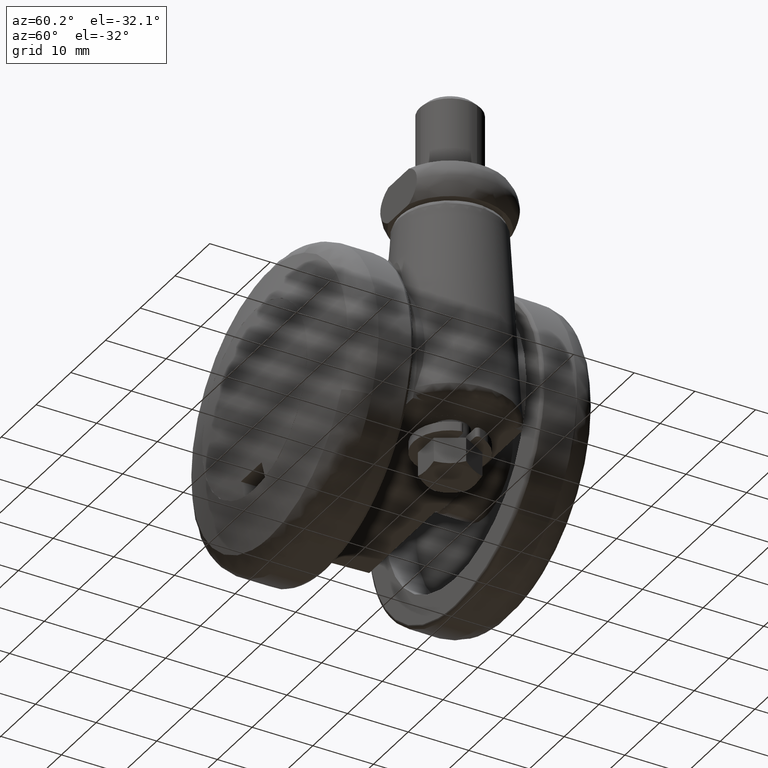
[diagram: clean part render]
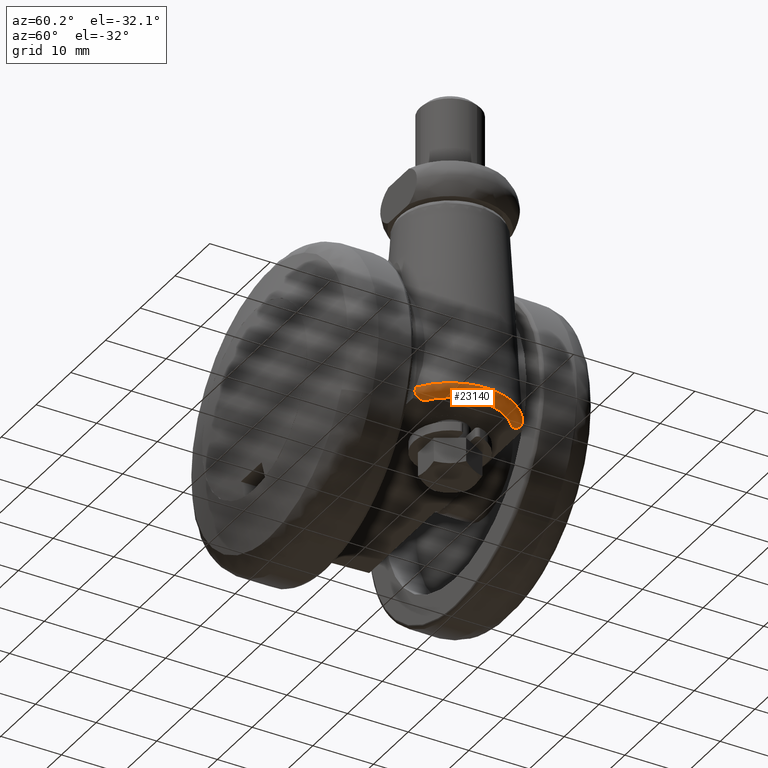
[diagram: same view with one face highlighted and labeled with its STEP entity id]
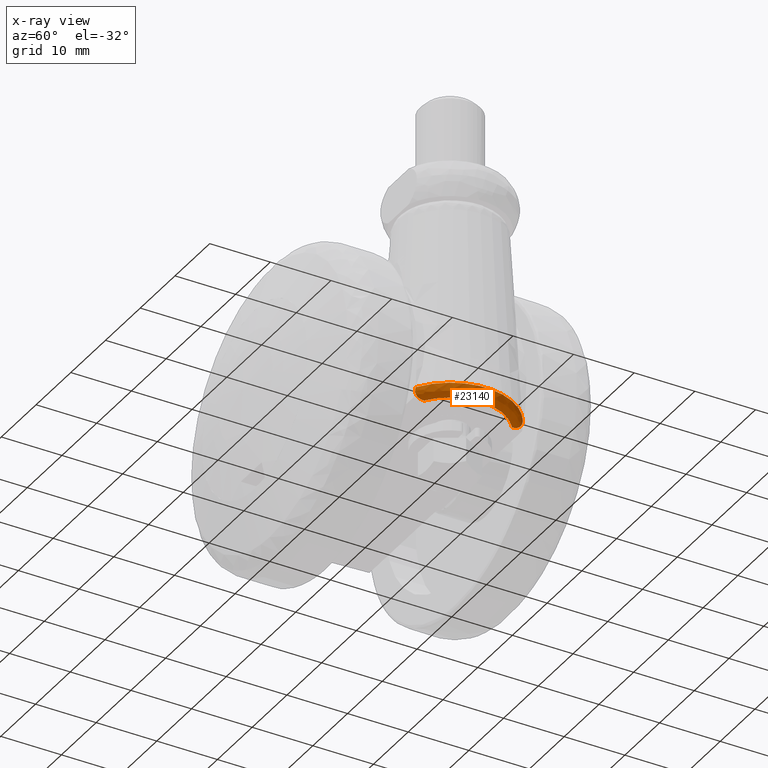
[diagram: x-ray of the same camera — body ghosted, the highlighted face saturated]
A machine part, auxiliary view. The second image highlights one B-rep face of the part: STEP entity #23140.
The next image is the same camera in x-ray: the body ghosted, the highlighted face saturated — about 0% of this face is hidden behind the body in this view.
In plain terms, the highlighted face is a freeform B-spline surface patch.
Its self-contained STEP definition (entity closure, byte-faithful):
#23009=CARTESIAN_POINT('',(20.774800439144332,-7.951221303421848,-7.496149489147332));
#23010=CARTESIAN_POINT('',(25.801763378514199,-5.564697122170681,-7.496149489147330));
#23011=CARTESIAN_POINT('',(25.801763378514202,5.389348E-016,-7.496149489147332));
#23012=CARTESIAN_POINT('',(25.801763378514199,5.564697892870028,-7.496149489147332));
#23013=CARTESIAN_POINT('',(20.774799444331343,7.951221775703997,-7.496149489147331));
#23014=CARTESIAN_POINT('',(21.561030532042583,-9.607332550844767,-7.627760213959456));
#23015=CARTESIAN_POINT('',(27.635028831965901,-6.723733846323080,-7.627760213959455));
#23016=CARTESIAN_POINT('',(27.635028831965897,6.511862E-016,-7.627760213959454));
#23017=CARTESIAN_POINT('',(27.635028831965908,6.723734777546675,-7.627760213959457));
#23018=CARTESIAN_POINT('',(21.561029330026077,9.607333121495673,-7.627760213959456));
#23019=CARTESIAN_POINT('',(21.458726826246998,-9.391840522046223,-5.805322082496598));
#23020=CARTESIAN_POINT('',(27.396485622682512,-6.572920804307775,-5.805322082496598));
#23021=CARTESIAN_POINT('',(27.396485622682508,6.365801E-016,-5.805322082496598));
#23022=CARTESIAN_POINT('',(27.396485622682508,6.572921714644067,-5.805322082496598));
#23023=CARTESIAN_POINT('',(21.458725651191667,9.391841079897462,-5.805322082496597));
#23031=(BOUNDED_SURFACE()B_SPLINE_SURFACE(2,2,((#23009,#23014,#23019),(#23010,#23015,#23020),(#23011,#23016,#23021),(#23012,#23017,#23022),(#23013,#23018,#23023)),.UNSPECIFIED.,.F.,.F.,.U.)B_SPLINE_SURFACE_WITH_KNOTS((3,2,3),(3,3),(0.0,12.042466969881250,24.084935326913911),(0.0,2.847832734757460),.UNSPECIFIED.)GEOMETRIC_REPRESENTATION_ITEM()RATIONAL_B_SPLINE_SURFACE(((0.885919982673631,0.561240228558042,0.889383005553009),(0.761012616023819,0.482110013213357,0.763987381411582),(0.915012234979288,0.579670496135955,0.918588978214135),(0.761012598284863,0.482110001975530,0.763987363603286),(0.885920011449371,0.561240246787796,0.889383034441232)))REPRESENTATION_ITEM('')SURFACE());
#23032=CARTESIAN_POINT('',(22.505503267729800,8.830992259150358,-5.911916969862051));
#23033=VERTEX_POINT('',#23032);
#23034=CARTESIAN_POINT('',(22.160977493456350,7.262070286592310,-7.500000000000000));
#23035=VERTEX_POINT('',#23034);
#23036=CARTESIAN_POINT('',(22.505503267729800,8.830992259150358,-5.911916969862051));
#23037=CARTESIAN_POINT('',(22.475810848268772,8.856716467841885,-6.015973768633282));
#23038=CARTESIAN_POINT('',(22.446241524475131,8.869517916477392,-6.121073492810367));
#23039=CARTESIAN_POINT('',(22.402130933378320,8.867835075968861,-6.280421031283202));
#23040=CARTESIAN_POINT('',(22.387361854823510,8.863679737977423,-6.334221786009999));
#23041=CARTESIAN_POINT('',(22.358666881396040,8.848119672442296,-6.439776961553847));
#23042=CARTESIAN_POINT('',(22.344706195916569,8.836775344830590,-6.491649165812654));
#23043=CARTESIAN_POINT('',(22.317593036015928,8.806943850016273,-6.593587987682419));
#23044=CARTESIAN_POINT('',(22.304440358451860,8.788457613148175,-6.643654814414592));
#23045=CARTESIAN_POINT('',(22.285375233331010,8.755141090285900,-6.717351153534272));
#23046=CARTESIAN_POINT('',(22.279114342075609,8.743058498962929,-6.741749703339555));
#23047=CARTESIAN_POINT('',(22.267014036074240,8.717379772666430,-6.789328406238102));
#23048=CARTESIAN_POINT('',(22.261153184486759,8.703752756870838,-6.812590278244287));
#23049=CARTESIAN_POINT('',(22.244132689500798,8.660570461650504,-6.880836972811340));
#23050=CARTESIAN_POINT('',(22.233533438831170,8.628720794026293,-6.924287463224988));
#23051=CARTESIAN_POINT('',(22.218765517906480,8.576463766306054,-6.986474391927489));
#23052=CARTESIAN_POINT('',(22.214031798845259,8.558295890001880,-7.006704042336687));
#23053=CARTESIAN_POINT('',(22.204948739400951,8.520460384894316,-7.046164814794424));
#23054=CARTESIAN_POINT('',(22.200591909088150,8.500745375489998,-7.065432061569689));
#23055=CARTESIAN_POINT('',(22.180059448632701,8.399798304432853,-7.158026380370320));
#23056=CARTESIAN_POINT('',(22.167364637174689,8.310658253093282,-7.221261555737318));
#23057=CARTESIAN_POINT('',(22.153470351016342,8.165872959720927,-7.301835613874133));
#23058=CARTESIAN_POINT('',(22.149737586782901,8.115984376741913,-7.326122859510738));
#23059=CARTESIAN_POINT('',(22.144046372110221,8.014958270436082,-7.369237772527984));
#23060=CARTESIAN_POINT('',(22.142062739952269,7.963565430929916,-7.388209313439216));
#23061=CARTESIAN_POINT('',(22.139679465512089,7.859180878646130,-7.421454308495028));
#23062=CARTESIAN_POINT('',(22.139280357686680,7.806188536356052,-7.435725905714757));
#23063=CARTESIAN_POINT('',(22.139968466574409,7.698713607537729,-7.459891007442754));
#23064=CARTESIAN_POINT('',(22.141066659341220,7.643987638322903,-7.469809051600635));
#23065=CARTESIAN_POINT('',(22.146390107015240,7.480147780348464,-7.493021646628185));
#23066=CARTESIAN_POINT('',(22.152599872514159,7.371054816520223,-7.500000000000009));
#23067=CARTESIAN_POINT('',(22.160977493456340,7.262070286592310,-7.500000000000001));
#23068=B_SPLINE_CURVE_WITH_KNOTS('',3,(#23036,#23037,#23038,#23039,#23040,#23041,#23042,#23043,#23044,#23045,#23046,#23047,#23048,#23049,#23050,#23051,#23052,#23053,#23054,#23055,#23056,#23057,#23058,#23059,#23060,#23061,#23062,#23063,#23064,#23065,#23066,#23067),.UNSPECIFIED.,.F.,.U.,(4,2,2,2,2,2,2,2,2,2,2,2,2,2,2,4),(0.0,0.124999999999998,0.187499999999998,0.249999999999997,0.312499999999996,0.343749999999996,0.374999999999996,0.437499999999997,0.468749999999997,0.499999999999998,0.624999999999998,0.687499999999998,0.749999999999998,0.812499999999999,0.874999999999999,1.0),.UNSPECIFIED.);
#23069=EDGE_CURVE('',#23033,#23035,#23068,.T.);
#23070=ORIENTED_EDGE('',*,*,#23069,.F.);
#23071=CARTESIAN_POINT('',(22.505503267729750,-8.830992259150380,-5.911916969862150));
#23072=VERTEX_POINT('',#23071);
#23073=CARTESIAN_POINT('',(22.505503267729750,-8.830992259150380,-5.911916969862150));
#23074=CARTESIAN_POINT('',(27.406583998227077,-5.775512740503760,-5.911916969862040));
#23075=CARTESIAN_POINT('',(27.406583998227081,0.0,-5.911916969862040));
#23076=CARTESIAN_POINT('',(27.406583998227077,5.775512740503721,-5.911916969862040));
#23077=CARTESIAN_POINT('',(22.505503267729800,8.830992259150358,-5.911916969862051));
#23085=(BOUNDED_CURVE()B_SPLINE_CURVE(2,(#23073,#23074,#23075,#23076,#23077),.UNSPECIFIED.,.F.,.U.)B_SPLINE_CURVE_WITH_KNOTS((3,2,3),(0.0,0.500000000000000,1.0),.UNSPECIFIED.)CURVE()GEOMETRIC_REPRESENTATION_ITEM()RATIONAL_B_SPLINE_CURVE((1.0,0.874368455238417,1.0,0.874368455238417,1.0))REPRESENTATION_ITEM(''));
#23086=EDGE_CURVE('',#23072,#23033,#23085,.T.);
#23087=ORIENTED_EDGE('',*,*,#23086,.F.);
#23088=CARTESIAN_POINT('',(22.160977493456301,-7.262070286592670,-7.500000000000000));
#23089=VERTEX_POINT('',#23088);
#23090=CARTESIAN_POINT('',(22.160977493456301,-7.262070286592670,-7.500000000000001));
#23091=CARTESIAN_POINT('',(22.152576542314190,-7.371358319256227,-7.499999999999999));
#23092=CARTESIAN_POINT('',(22.146374776402759,-7.480527856030308,-7.492977292545448));
#23093=CARTESIAN_POINT('',(22.141065452683200,-7.644070768145537,-7.469792514737232));
#23094=CARTESIAN_POINT('',(22.139966472128322,-7.698784657575547,-7.459879948015277));
#23095=CARTESIAN_POINT('',(22.139280209474538,-7.806452895839369,-7.435661534959130));
#23096=CARTESIAN_POINT('',(22.139683298331491,-7.859501444971990,-7.421363421540644));
#23097=CARTESIAN_POINT('',(22.142074314666282,-7.963918707507288,-7.388085518449705));
#23098=CARTESIAN_POINT('',(22.144061743986189,-8.015288037899612,-7.369107456001468));
#23099=CARTESIAN_POINT('',(22.149752285476609,-8.116188097502807,-7.326025444031704));
#23100=CARTESIAN_POINT('',(22.153469367387292,-8.165870983351409,-7.301839331731417));
#23101=CARTESIAN_POINT('',(22.167382420062900,-8.310826998357863,-7.221162407329034));
#23102=CARTESIAN_POINT('',(22.180070166006480,-8.399746261402004,-7.158001422828420));
#23103=CARTESIAN_POINT('',(22.204549429991619,-8.520254286441734,-7.047573421955418));
#23104=CARTESIAN_POINT('',(22.213706565124120,-8.558519216536078,-7.007786400349615));
#23105=CARTESIAN_POINT('',(22.233446923725229,-8.628457363337596,-6.924642847407116));
#23106=CARTESIAN_POINT('',(22.244034752839120,-8.660273813849871,-6.881238906824844));
#23107=CARTESIAN_POINT('',(22.266595669374482,-8.717608234425073,-6.790758563535632));
#23108=CARTESIAN_POINT('',(22.278568603870841,-8.743127264503380,-6.743682798846735));
#23109=CARTESIAN_POINT('',(22.297569628648201,-8.776507097616497,-6.670203954117933));
#23110=CARTESIAN_POINT('',(22.304105365057911,-8.786852018550302,-6.645126031100845));
#23111=CARTESIAN_POINT('',(22.317365001843360,-8.805625403529843,-6.594609577529950));
#23112=CARTESIAN_POINT('',(22.324086819104242,-8.814062903666175,-6.569176927365771));
#23113=CARTESIAN_POINT('',(22.344512614403339,-8.836612515236258,-6.492369264622484));
#23114=CARTESIAN_POINT('',(22.358475784082842,-8.847970829830476,-6.440486137668548));
#23115=CARTESIAN_POINT('',(22.387041456198851,-8.863550415679748,-6.335394270819312));
#23116=CARTESIAN_POINT('',(22.401723719077740,-8.867769431210471,-6.281898352590354));
#23117=CARTESIAN_POINT('',(22.446132384498551,-8.869612424469949,-6.121455394184258));
#23118=CARTESIAN_POINT('',(22.475802425598321,-8.856723764872500,-6.016003285801149));
#23119=CARTESIAN_POINT('',(22.505503267729750,-8.830992259150380,-5.911916969862150));
#23120=B_SPLINE_CURVE_WITH_KNOTS('',3,(#23090,#23091,#23092,#23093,#23094,#23095,#23096,#23097,#23098,#23099,#23100,#23101,#23102,#23103,#23104,#23105,#23106,#23107,#23108,#23109,#23110,#23111,#23112,#23113,#23114,#23115,#23116,#23117,#23118,#23119),.UNSPECIFIED.,.F.,.U.,(4,2,2,2,2,2,2,2,2,2,2,2,2,2,4),(0.0,0.125000000000001,0.187500000000002,0.250000000000002,0.312500000000003,0.375000000000004,0.500000000000004,0.562500000000004,0.625000000000004,0.687500000000004,0.718750000000004,0.750000000000003,0.812500000000003,0.875000000000002,1.0),.UNSPECIFIED.);
#23121=EDGE_CURVE('',#23089,#23072,#23120,.T.);
#23122=ORIENTED_EDGE('',*,*,#23121,.F.);
#23123=CARTESIAN_POINT('',(22.160977493456350,7.262070286592310,-7.500000000000000));
#23124=CARTESIAN_POINT('',(25.909172438300512,4.598318906060981,-7.500000000000001));
#23125=CARTESIAN_POINT('',(25.909172438300509,0.0,-7.500000000000000));
#23126=CARTESIAN_POINT('',(25.909172438300512,-4.598318906061142,-7.500000000000001));
#23127=CARTESIAN_POINT('',(22.160977493456301,-7.262070286592670,-7.500000000000000));
#23135=(BOUNDED_CURVE()B_SPLINE_CURVE(2,(#23123,#23124,#23125,#23126,#23127),.UNSPECIFIED.,.F.,.U.)B_SPLINE_CURVE_WITH_KNOTS((3,2,3),(0.0,0.500000000000000,1.0),.UNSPECIFIED.)CURVE()GEOMETRIC_REPRESENTATION_ITEM()RATIONAL_B_SPLINE_CURVE((1.0,0.888619179097431,1.0,0.888619179097431,1.0))REPRESENTATION_ITEM(''));
#23136=EDGE_CURVE('',#23035,#23089,#23135,.T.);
#23137=ORIENTED_EDGE('',*,*,#23136,.F.);
#23138=EDGE_LOOP('',(#23070,#23087,#23122,#23137));
#23139=FACE_OUTER_BOUND('',#23138,.T.);
#23140=ADVANCED_FACE('',(#23139),#23031,.T.);